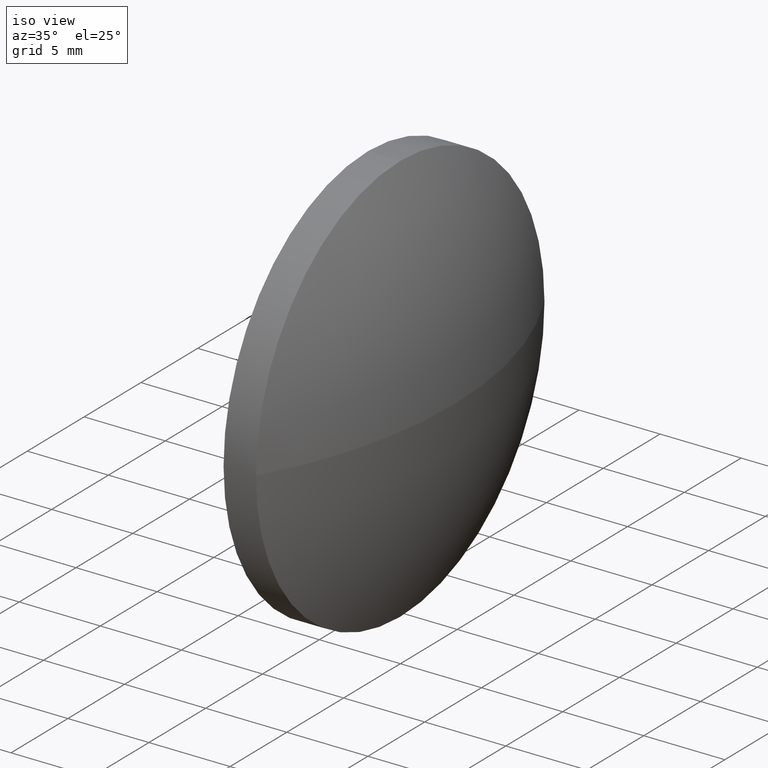
[diagram: clean part render]
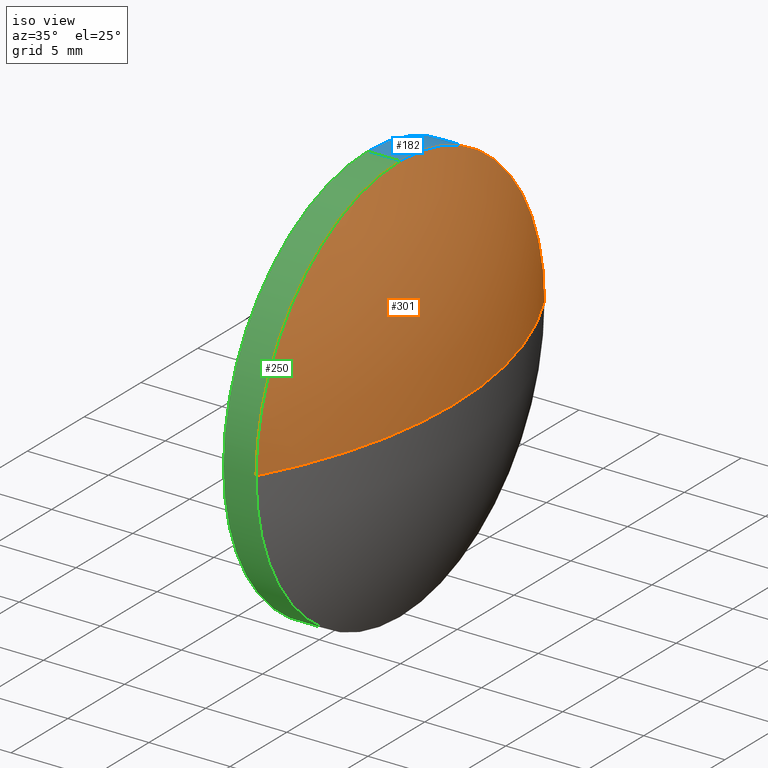
[diagram: same view with three faces highlighted in distinct colors, each labeled with its STEP entity id]
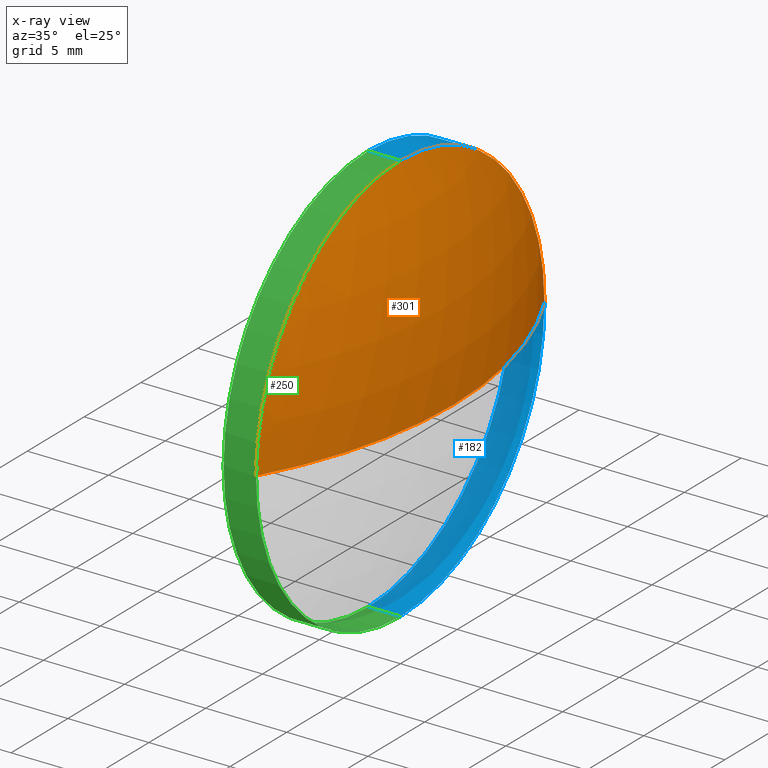
[diagram: x-ray of the same camera — body ghosted, the three highlighted faces saturated]
A machine part, iso view with three faces highlighted in distinct colors.
The next image is the same camera in x-ray (body ghosted, the three faces saturated) — at least one of them is partly hidden behind the body in this view.
Their STEP definitions:

[orange] entity #301 — the highlighted spherical surface has radius 26.0866 mm.
#15 = ORIENTED_EDGE ( 'NONE', *, *, #252, .F. ) ;
#16 = CARTESIAN_POINT ( 'NONE',  ( 87.45786520323396500, 48.61611302318478100, 0.0000000000000000000 ) ) ;
#17 = AXIS2_PLACEMENT_3D ( 'NONE', #58, #242, #326 ) ;
#19 = DIRECTION ( 'NONE',  ( -1.000000000000000000, 0.0000000000000000000, 0.0000000000000000000 ) ) ;
#43 = ORIENTED_EDGE ( 'NONE', *, *, #161, .T. ) ;
#48 = AXIS2_PLACEMENT_3D ( 'NONE', #172, #310, #19 ) ;
#56 = EDGE_CURVE ( 'NONE', #61, #280, #119, .T. ) ;
#58 = CARTESIAN_POINT ( 'NONE',  ( 87.45786520323396500, 48.61611302318478100, 0.0000000000000000000 ) ) ;
#61 = VERTEX_POINT ( 'NONE', #297 ) ;
#75 = DIRECTION ( 'NONE',  ( 0.0000000000000000000, -1.000000000000000000, 0.0000000000000000000 ) ) ;
#86 = AXIS2_PLACEMENT_3D ( 'NONE', #16, #120, #144 ) ;
#87 = EDGE_LOOP ( 'NONE', ( #15, #43, #324, #338 ) ) ;
#100 = CARTESIAN_POINT ( 'NONE',  ( 64.67145448698481400, 48.61611302318480200, 0.0000000000000000000 ) ) ;
#119 = CIRCLE ( 'NONE', #17, 12.69999999999999600 ) ;
#120 = DIRECTION ( 'NONE',  ( -1.000000000000000000, -0.0000000000000000000, -0.0000000000000000000 ) ) ;
#124 = VERTEX_POINT ( 'NONE', #213 ) ;
#127 = CIRCLE ( 'NONE', #171, 26.08659643053486100 ) ;
#144 = DIRECTION ( 'NONE',  ( 0.0000000000000000000, 0.0000000000000000000, 1.000000000000000000 ) ) ;
#148 = DIRECTION ( 'NONE',  ( 0.0000000000000000000, 0.0000000000000000000, 1.000000000000000000 ) ) ;
#161 = EDGE_CURVE ( 'NONE', #124, #280, #127, .T. ) ;
#170 = CARTESIAN_POINT ( 'NONE',  ( 87.45786520323396500, 61.31611302318479100, 1.555301434917137400E-015 ) ) ;
#171 = AXIS2_PLACEMENT_3D ( 'NONE', #272, #196, #200 ) ;
#172 = CARTESIAN_POINT ( 'NONE',  ( 64.67145448698481400, 48.61611302318480200, 0.0000000000000000000 ) ) ;
#177 = CIRCLE ( 'NONE', #86, 12.69999999999999600 ) ;
#194 = CIRCLE ( 'NONE', #48, 26.08659643053486100 ) ;
#196 = DIRECTION ( 'NONE',  ( 0.0000000000000000000, -1.224646799147353200E-016, 1.000000000000000000 ) ) ;
#200 = DIRECTION ( 'NONE',  ( 0.0000000000000000000, -1.000000000000000000, -1.224646799147353200E-016 ) ) ;
#213 = CARTESIAN_POINT ( 'NONE',  ( 90.75805091751968200, 48.61611302318480200, 0.0000000000000000000 ) ) ;
#242 = DIRECTION ( 'NONE',  ( -1.000000000000000000, -0.0000000000000000000, -0.0000000000000000000 ) ) ;
#252 = EDGE_CURVE ( 'NONE', #124, #276, #194, .T. ) ;
#257 = CARTESIAN_POINT ( 'NONE',  ( 87.45786520323396500, 35.91611302318479200, 0.0000000000000000000 ) ) ;
#272 = CARTESIAN_POINT ( 'NONE',  ( 64.67145448698481400, 48.61611302318480200, 0.0000000000000000000 ) ) ;
#275 = SPHERICAL_SURFACE ( 'NONE', #339, 26.08659643053486100 ) ;
#276 = VERTEX_POINT ( 'NONE', #257 ) ;
#277 = EDGE_CURVE ( 'NONE', #276, #61, #177, .T. ) ;
#280 = VERTEX_POINT ( 'NONE', #170 ) ;
#297 = CARTESIAN_POINT ( 'NONE',  ( 87.45786520323396500, 48.61611302318478100, 12.69999999999999600 ) ) ;
#301 = ADVANCED_FACE ( 'NONE', ( #309 ), #275, .T. ) ;
#309 = FACE_OUTER_BOUND ( 'NONE', #87, .T. ) ;
#310 = DIRECTION ( 'NONE',  ( 0.0000000000000000000, 0.0000000000000000000, -1.000000000000000000 ) ) ;
#324 = ORIENTED_EDGE ( 'NONE', *, *, #56, .F. ) ;
#326 = DIRECTION ( 'NONE',  ( 0.0000000000000000000, 0.0000000000000000000, 1.000000000000000000 ) ) ;
#338 = ORIENTED_EDGE ( 'NONE', *, *, #277, .F. ) ;
#339 = AXIS2_PLACEMENT_3D ( 'NONE', #100, #148, #75 ) ;

[blue] entity #182 — the highlighted cylindrical surface (partial cylindrical patch) has radius 12.7 mm, axis along (-1, -0, -0).
#17 = AXIS2_PLACEMENT_3D ( 'NONE', #58, #242, #326 ) ;
#23 = ORIENTED_EDGE ( 'NONE', *, *, #220, .T. ) ;
#30 = AXIS2_PLACEMENT_3D ( 'NONE', #99, #98, #74 ) ;
#33 = DIRECTION ( 'NONE',  ( -1.000000000000000000, -0.0000000000000000000, -0.0000000000000000000 ) ) ;
#36 = CIRCLE ( 'NONE', #137, 12.69999999999999600 ) ;
#56 = EDGE_CURVE ( 'NONE', #61, #280, #119, .T. ) ;
#58 = CARTESIAN_POINT ( 'NONE',  ( 87.45786520323396500, 48.61611302318478100, 0.0000000000000000000 ) ) ;
#59 = CIRCLE ( 'NONE', #67, 12.69999999999999600 ) ;
#61 = VERTEX_POINT ( 'NONE', #297 ) ;
#64 = EDGE_CURVE ( 'NONE', #113, #195, #59, .T. ) ;
#65 = ORIENTED_EDGE ( 'NONE', *, *, #183, .F. ) ;
#67 = AXIS2_PLACEMENT_3D ( 'NONE', #328, #33, #302 ) ;
#69 = VECTOR ( 'NONE', #288, 1000.000000000000000 ) ;
#72 = CARTESIAN_POINT ( 'NONE',  ( 85.45852234609111500, 48.61611302318478100, 12.69999999999999600 ) ) ;
#74 = DIRECTION ( 'NONE',  ( 0.0000000000000000000, 0.0000000000000000000, 1.000000000000000000 ) ) ;
#79 = EDGE_LOOP ( 'NONE', ( #110, #23, #234, #249, #65, #299 ) ) ;
#90 = CARTESIAN_POINT ( 'NONE',  ( 85.45852234609111500, 61.31611302318477600, 0.0000000000000000000 ) ) ;
#95 = DIRECTION ( 'NONE',  ( -1.000000000000000000, -0.0000000000000000000, -0.0000000000000000000 ) ) ;
#97 = LINE ( 'NONE', #255, #69 ) ;
#98 = DIRECTION ( 'NONE',  ( -1.000000000000000000, -0.0000000000000000000, -0.0000000000000000000 ) ) ;
#99 = CARTESIAN_POINT ( 'NONE',  ( 85.45852234609111500, 48.61611302318478100, 0.0000000000000000000 ) ) ;
#101 = AXIS2_PLACEMENT_3D ( 'NONE', #121, #95, #123 ) ;
#110 = ORIENTED_EDGE ( 'NONE', *, *, #237, .T. ) ;
#113 = VERTEX_POINT ( 'NONE', #90 ) ;
#119 = CIRCLE ( 'NONE', #17, 12.69999999999999600 ) ;
#121 = CARTESIAN_POINT ( 'NONE',  ( 79.30540135083715800, 48.61611302318478100, 0.0000000000000000000 ) ) ;
#123 = DIRECTION ( 'NONE',  ( 0.0000000000000000000, 0.0000000000000000000, 1.000000000000000000 ) ) ;
#137 = AXIS2_PLACEMENT_3D ( 'NONE', #254, #142, #334 ) ;
#142 = DIRECTION ( 'NONE',  ( -1.000000000000000000, -0.0000000000000000000, -0.0000000000000000000 ) ) ;
#146 = CARTESIAN_POINT ( 'NONE',  ( 79.30540135083715800, 48.61611302318478100, 12.69999999999999600 ) ) ;
#165 = LINE ( 'NONE', #146, #246 ) ;
#170 = CARTESIAN_POINT ( 'NONE',  ( 87.45786520323396500, 61.31611302318479100, 1.555301434917137400E-015 ) ) ;
#179 = VERTEX_POINT ( 'NONE', #286 ) ;
#182 = ADVANCED_FACE ( 'NONE', ( #331 ), #239, .T. ) ;
#183 = EDGE_CURVE ( 'NONE', #61, #207, #165, .T. ) ;
#195 = VERTEX_POINT ( 'NONE', #197 ) ;
#197 = CARTESIAN_POINT ( 'NONE',  ( 85.45852234609111500, 48.61611302318478100, -12.69999999999999600 ) ) ;
#202 = EDGE_CURVE ( 'NONE', #207, #113, #311, .T. ) ;
#207 = VERTEX_POINT ( 'NONE', #72 ) ;
#220 = EDGE_CURVE ( 'NONE', #179, #195, #97, .T. ) ;
#234 = ORIENTED_EDGE ( 'NONE', *, *, #64, .F. ) ;
#237 = EDGE_CURVE ( 'NONE', #280, #179, #36, .T. ) ;
#239 = CYLINDRICAL_SURFACE ( 'NONE', #101, 12.69999999999999600 ) ;
#242 = DIRECTION ( 'NONE',  ( -1.000000000000000000, -0.0000000000000000000, -0.0000000000000000000 ) ) ;
#246 = VECTOR ( 'NONE', #290, 1000.000000000000000 ) ;
#249 = ORIENTED_EDGE ( 'NONE', *, *, #202, .F. ) ;
#254 = CARTESIAN_POINT ( 'NONE',  ( 87.45786520323396500, 48.61611302318478100, 0.0000000000000000000 ) ) ;
#255 = CARTESIAN_POINT ( 'NONE',  ( 79.30540135083715800, 48.61611302318478100, -12.69999999999999600 ) ) ;
#280 = VERTEX_POINT ( 'NONE', #170 ) ;
#286 = CARTESIAN_POINT ( 'NONE',  ( 87.45786520323396500, 48.61611302318478100, -12.69999999999999600 ) ) ;
#288 = DIRECTION ( 'NONE',  ( -1.000000000000000000, -0.0000000000000000000, -0.0000000000000000000 ) ) ;
#290 = DIRECTION ( 'NONE',  ( -1.000000000000000000, -0.0000000000000000000, -0.0000000000000000000 ) ) ;
#297 = CARTESIAN_POINT ( 'NONE',  ( 87.45786520323396500, 48.61611302318478100, 12.69999999999999600 ) ) ;
#299 = ORIENTED_EDGE ( 'NONE', *, *, #56, .T. ) ;
#302 = DIRECTION ( 'NONE',  ( 0.0000000000000000000, 0.0000000000000000000, 1.000000000000000000 ) ) ;
#311 = CIRCLE ( 'NONE', #30, 12.69999999999999600 ) ;
#326 = DIRECTION ( 'NONE',  ( 0.0000000000000000000, 0.0000000000000000000, 1.000000000000000000 ) ) ;
#328 = CARTESIAN_POINT ( 'NONE',  ( 85.45852234609111500, 48.61611302318478100, 0.0000000000000000000 ) ) ;
#331 = FACE_OUTER_BOUND ( 'NONE', #79, .T. ) ;
#334 = DIRECTION ( 'NONE',  ( 0.0000000000000000000, 0.0000000000000000000, 1.000000000000000000 ) ) ;

[green] entity #250 — the highlighted cylindrical surface (partial cylindrical patch) has radius 12.7 mm, axis along (-1, -0, -0).
#9 = ORIENTED_EDGE ( 'NONE', *, *, #44, .F. ) ;
#16 = CARTESIAN_POINT ( 'NONE',  ( 87.45786520323396500, 48.61611302318478100, 0.0000000000000000000 ) ) ;
#21 = EDGE_CURVE ( 'NONE', #179, #276, #333, .T. ) ;
#31 = ORIENTED_EDGE ( 'NONE', *, *, #261, .F. ) ;
#41 = CIRCLE ( 'NONE', #248, 12.69999999999999600 ) ;
#44 = EDGE_CURVE ( 'NONE', #195, #315, #214, .T. ) ;
#47 = CARTESIAN_POINT ( 'NONE',  ( 85.45852234609111500, 48.61611302318478100, 0.0000000000000000000 ) ) ;
#49 = ORIENTED_EDGE ( 'NONE', *, *, #183, .T. ) ;
#54 = ORIENTED_EDGE ( 'NONE', *, *, #220, .F. ) ;
#61 = VERTEX_POINT ( 'NONE', #297 ) ;
#69 = VECTOR ( 'NONE', #288, 1000.000000000000000 ) ;
#72 = CARTESIAN_POINT ( 'NONE',  ( 85.45852234609111500, 48.61611302318478100, 12.69999999999999600 ) ) ;
#73 = AXIS2_PLACEMENT_3D ( 'NONE', #203, #168, #337 ) ;
#84 = CARTESIAN_POINT ( 'NONE',  ( 85.45852234609111500, 48.61611302318478100, 0.0000000000000000000 ) ) ;
#86 = AXIS2_PLACEMENT_3D ( 'NONE', #16, #120, #144 ) ;
#97 = LINE ( 'NONE', #255, #69 ) ;
#109 = DIRECTION ( 'NONE',  ( 0.0000000000000000000, 0.0000000000000000000, 1.000000000000000000 ) ) ;
#111 = DIRECTION ( 'NONE',  ( -1.000000000000000000, -0.0000000000000000000, -0.0000000000000000000 ) ) ;
#120 = DIRECTION ( 'NONE',  ( -1.000000000000000000, -0.0000000000000000000, -0.0000000000000000000 ) ) ;
#134 = FACE_OUTER_BOUND ( 'NONE', #292, .T. ) ;
#144 = DIRECTION ( 'NONE',  ( 0.0000000000000000000, 0.0000000000000000000, 1.000000000000000000 ) ) ;
#146 = CARTESIAN_POINT ( 'NONE',  ( 79.30540135083715800, 48.61611302318478100, 12.69999999999999600 ) ) ;
#156 = AXIS2_PLACEMENT_3D ( 'NONE', #84, #270, #109 ) ;
#165 = LINE ( 'NONE', #146, #246 ) ;
#168 = DIRECTION ( 'NONE',  ( -1.000000000000000000, -0.0000000000000000000, -0.0000000000000000000 ) ) ;
#176 = CARTESIAN_POINT ( 'NONE',  ( 85.45852234609111500, 35.91611302318477800, -1.555301434917138000E-015 ) ) ;
#177 = CIRCLE ( 'NONE', #86, 12.69999999999999600 ) ;
#179 = VERTEX_POINT ( 'NONE', #286 ) ;
#183 = EDGE_CURVE ( 'NONE', #61, #207, #165, .T. ) ;
#195 = VERTEX_POINT ( 'NONE', #197 ) ;
#197 = CARTESIAN_POINT ( 'NONE',  ( 85.45852234609111500, 48.61611302318478100, -12.69999999999999600 ) ) ;
#201 = ORIENTED_EDGE ( 'NONE', *, *, #21, .T. ) ;
#203 = CARTESIAN_POINT ( 'NONE',  ( 79.30540135083715800, 48.61611302318478100, 0.0000000000000000000 ) ) ;
#206 = CYLINDRICAL_SURFACE ( 'NONE', #73, 12.69999999999999600 ) ;
#207 = VERTEX_POINT ( 'NONE', #72 ) ;
#214 = CIRCLE ( 'NONE', #156, 12.69999999999999600 ) ;
#220 = EDGE_CURVE ( 'NONE', #179, #195, #97, .T. ) ;
#230 = DIRECTION ( 'NONE',  ( -1.000000000000000000, -0.0000000000000000000, -0.0000000000000000000 ) ) ;
#246 = VECTOR ( 'NONE', #290, 1000.000000000000000 ) ;
#248 = AXIS2_PLACEMENT_3D ( 'NONE', #47, #230, #259 ) ;
#250 = ADVANCED_FACE ( 'NONE', ( #134 ), #206, .T. ) ;
#255 = CARTESIAN_POINT ( 'NONE',  ( 79.30540135083715800, 48.61611302318478100, -12.69999999999999600 ) ) ;
#257 = CARTESIAN_POINT ( 'NONE',  ( 87.45786520323396500, 35.91611302318479200, 0.0000000000000000000 ) ) ;
#259 = DIRECTION ( 'NONE',  ( 0.0000000000000000000, 0.0000000000000000000, 1.000000000000000000 ) ) ;
#261 = EDGE_CURVE ( 'NONE', #315, #207, #41, .T. ) ;
#270 = DIRECTION ( 'NONE',  ( -1.000000000000000000, -0.0000000000000000000, -0.0000000000000000000 ) ) ;
#276 = VERTEX_POINT ( 'NONE', #257 ) ;
#277 = EDGE_CURVE ( 'NONE', #276, #61, #177, .T. ) ;
#286 = CARTESIAN_POINT ( 'NONE',  ( 87.45786520323396500, 48.61611302318478100, -12.69999999999999600 ) ) ;
#288 = DIRECTION ( 'NONE',  ( -1.000000000000000000, -0.0000000000000000000, -0.0000000000000000000 ) ) ;
#290 = DIRECTION ( 'NONE',  ( -1.000000000000000000, -0.0000000000000000000, -0.0000000000000000000 ) ) ;
#292 = EDGE_LOOP ( 'NONE', ( #54, #201, #307, #49, #31, #9 ) ) ;
#297 = CARTESIAN_POINT ( 'NONE',  ( 87.45786520323396500, 48.61611302318478100, 12.69999999999999600 ) ) ;
#300 = DIRECTION ( 'NONE',  ( 0.0000000000000000000, 0.0000000000000000000, 1.000000000000000000 ) ) ;
#307 = ORIENTED_EDGE ( 'NONE', *, *, #277, .T. ) ;
#315 = VERTEX_POINT ( 'NONE', #176 ) ;
#322 = CARTESIAN_POINT ( 'NONE',  ( 87.45786520323396500, 48.61611302318478100, 0.0000000000000000000 ) ) ;
#330 = AXIS2_PLACEMENT_3D ( 'NONE', #322, #111, #300 ) ;
#333 = CIRCLE ( 'NONE', #330, 12.69999999999999600 ) ;
#337 = DIRECTION ( 'NONE',  ( 0.0000000000000000000, 0.0000000000000000000, 1.000000000000000000 ) ) ;